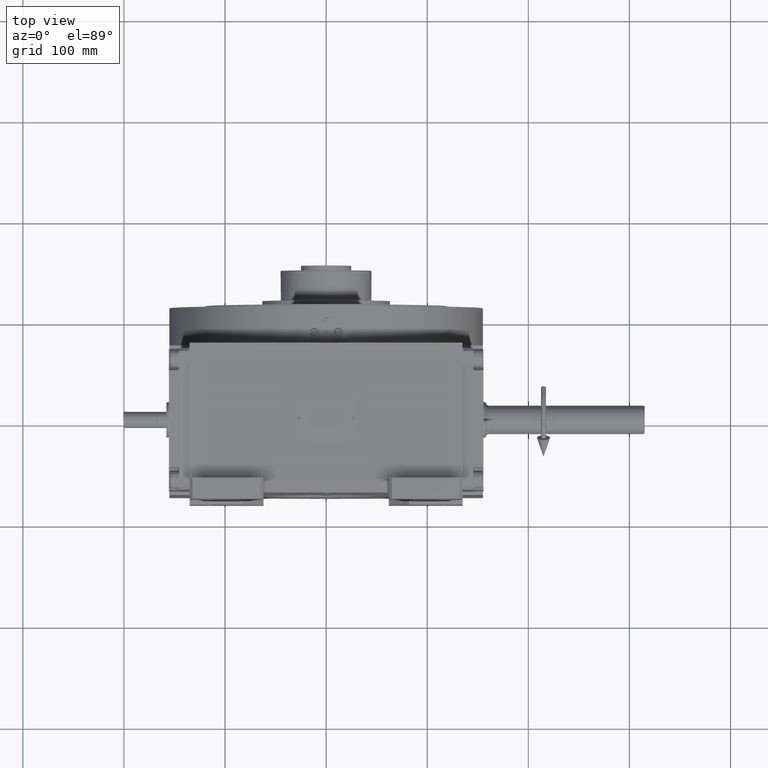
[diagram: clean part render]
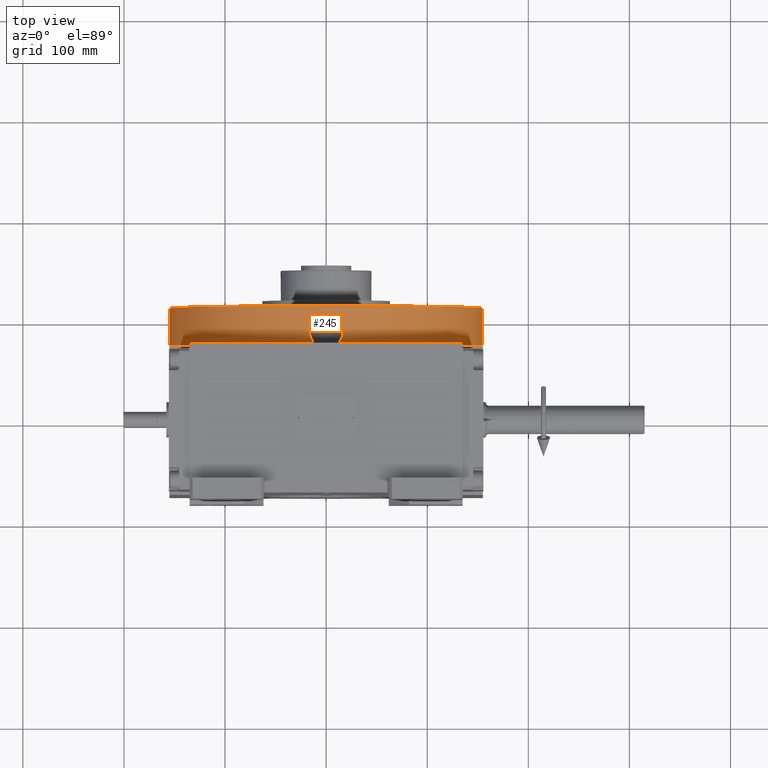
[diagram: same view with one face highlighted and labeled with its STEP entity id]
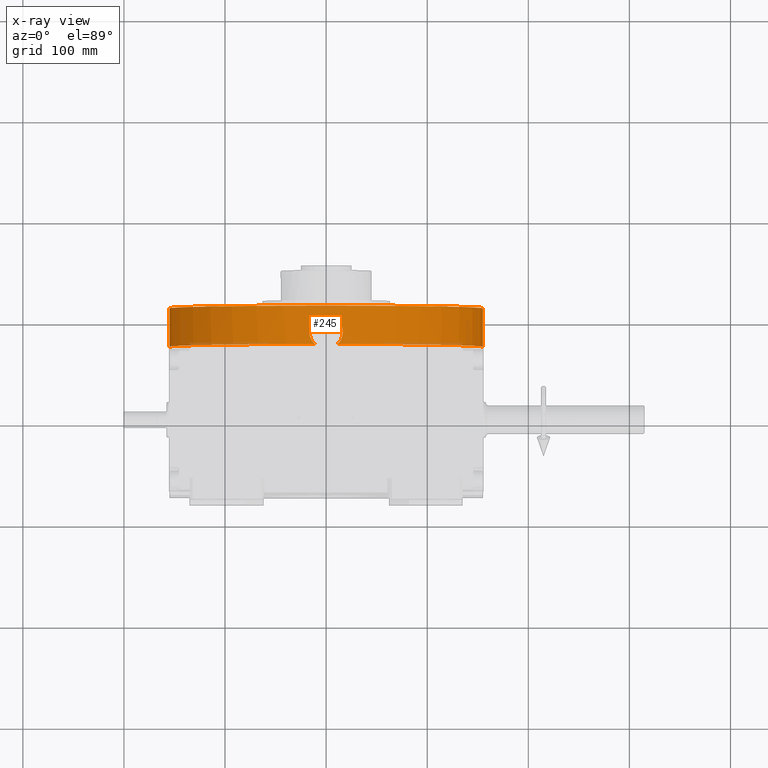
[diagram: x-ray of the same camera — body ghosted, the highlighted face saturated]
A machine part, top view. The second image highlights one B-rep face of the part: STEP entity #245.
The next image is the same camera in x-ray: the body ghosted, the highlighted face saturated — about 3% of this face is hidden behind the body in this view.
In plain terms, the highlighted cylindrical surface (partial cylindrical patch) has radius 155 mm, axis along (0, 1, 0).
Its self-contained STEP definition (entity closure, byte-faithful):
#135 = CARTESIAN_POINT ( 'NONE',  ( 15.45416844923964916, -154.2277916099160393, 17.80606177890279440 ) ) ;
#234 = VECTOR ( 'NONE', #20999, 1000.000000000000000 ) ;
#245 = ADVANCED_FACE ( 'NONE', ( #27432 ), #6730, .T. ) ;
#477 = CARTESIAN_POINT ( 'NONE',  ( 16.07944229175783590, -154.1637528043282259, 15.74008504191706415 ) ) ;
#1172 = EDGE_CURVE ( 'NONE', #21703, #63999, #22430, .T. ) ;
#1196 = CARTESIAN_POINT ( 'NONE',  ( -16.47347441674796542, -154.1221186100601415, 13.07788093233711990 ) ) ;
#1401 = ORIENTED_EDGE ( 'NONE', *, *, #31754, .T. ) ;
#2429 = CARTESIAN_POINT ( 'NONE',  ( 155.0000000000000000, -1.898181641927000027E-14, 0.000000000000000000 ) ) ;
#2974 = ORIENTED_EDGE ( 'NONE', *, *, #64068, .T. ) ;
#4452 = CARTESIAN_POINT ( 'NONE',  ( -12.12083535963226311, -154.5257928050614566, 0.7906035061695759758 ) ) ;
#5147 = CARTESIAN_POINT ( 'NONE',  ( 2.685035500526933738, -154.9776442185808776, 28.28891912727422309 ) ) ;
#5520 = CARTESIAN_POINT ( 'NONE',  ( 12.43262746237155270, -154.5024859019250130, 22.90171598535045305 ) ) ;
#5563 = CARTESIAN_POINT ( 'NONE',  ( -16.49998233661029090, -154.1193022417044460, 12.00000001812405870 ) ) ;
#5687 = CARTESIAN_POINT ( 'NONE',  ( 0.000000000000000000, 0.000000000000000000, 0.000000000000000000 ) ) ;
#5861 = CARTESIAN_POINT ( 'NONE',  ( 15.94805856842614133, -154.1774434893680450, 16.26583947859815638 ) ) ;
#6192 = CARTESIAN_POINT ( 'NONE',  ( -16.07920685589499143, -154.1637774076992855, 15.74105798217210328 ) ) ;
#6553 = CARTESIAN_POINT ( 'NONE',  ( -15.04104416391116672, -154.2686293629195120, 18.80506493828264780 ) ) ;
#6626 = ORIENTED_EDGE ( 'NONE', *, *, #13971, .T. ) ;
#6730 = CYLINDRICAL_SURFACE ( 'NONE', #23623, 155.0000000000000000 ) ;
#7489 = AXIS2_PLACEMENT_3D ( 'NONE', #20976, #37436, #25633 ) ;
#8556 = CARTESIAN_POINT ( 'NONE',  ( -155.0000000000000000, 3.796342387102999398E-14, 0.000000000000000000 ) ) ;
#9093 = CARTESIAN_POINT ( 'NONE',  ( -15.93480398042398605, -154.1789013208416463, 7.575224915596185937 ) ) ;
#10412 = CARTESIAN_POINT ( 'NONE',  ( 12.12089972014433314, -154.5257876431932402, 0.7906554065422800592 ) ) ;
#10841 = CARTESIAN_POINT ( 'NONE',  ( -6.804449563144633117, -154.8513750105633449, 27.04126009729906599 ) ) ;
#11104 = CARTESIAN_POINT ( 'NONE',  ( 16.49992246166192089, -154.1192802953580951, 11.44157901925919241 ) ) ;
#11539 = CARTESIAN_POINT ( 'NONE',  ( 5.309465047980734376, -154.9122498780884882, 27.65956347238378399 ) ) ;
#11708 = CARTESIAN_POINT ( 'NONE',  ( 0.000000000000000000, 0.000000000000000000, 38.00000000000000711 ) ) ;
#13971 = EDGE_CURVE ( 'NONE', #48265, #38597, #48942, .T. ) ;
#14054 = CARTESIAN_POINT ( 'NONE',  ( 12.85405420613797212, -154.4665288897264759, 1.639735500227976761 ) ) ;
#15477 = CARTESIAN_POINT ( 'NONE',  ( -14.16349452285378874, -154.3528783872963288, 3.461613631622395104 ) ) ;
#15842 = CARTESIAN_POINT ( 'NONE',  ( -15.63543345909815585, -154.2094610502056753, 17.29859132476287442 ) ) ;
#16181 = CARTESIAN_POINT ( 'NONE',  ( 0.5395909367066812345, -154.9999991344193120, 28.49999439215257269 ) ) ;
#16526 = CARTESIAN_POINT ( 'NONE',  ( -14.30134451282896002, -154.3390324787075656, 20.24669562453046012 ) ) ;
#16887 = CARTESIAN_POINT ( 'NONE',  ( 16.49995917721336269, -154.1193573637430347, 12.00000000688956270 ) ) ;
#17392 = DIRECTION ( 'NONE',  ( 0.000000000000000000, 0.000000000000000000, 1.000000000000000000 ) ) ;
#19419 = CARTESIAN_POINT ( 'NONE',  ( -14.71186955414902009, -154.3008712253308943, 4.446158355349954405 ) ) ;
#19749 = CARTESIAN_POINT ( 'NONE',  ( 11.32475165290999897, -154.5857367287999864, 0.000000000000000000 ) ) ;
#20495 = CARTESIAN_POINT ( 'NONE',  ( -16.35841010258596029, -154.1343753264042959, 9.771570267182383418 ) ) ;
#20976 = CARTESIAN_POINT ( 'NONE',  ( 0.000000000000000000, 0.000000000000000000, 0.000000000000000000 ) ) ;
#20999 = DIRECTION ( 'NONE',  ( 0.000000000000000000, 0.000000000000000000, 1.000000000000000000 ) ) ;
#21548 = CARTESIAN_POINT ( 'NONE',  ( 6.804908101104747864, -154.8513549216870047, 27.04104868677902473 ) ) ;
#21703 = VERTEX_POINT ( 'NONE', #5563 ) ;
#21808 = CARTESIAN_POINT ( 'NONE',  ( 11.73333306880150495, -154.5558045813984336, 0.3855902554139045701 ) ) ;
#21883 = CARTESIAN_POINT ( 'NONE',  ( -16.28931234655462035, -154.1417187558310218, 14.68326146040402413 ) ) ;
#22223 = CARTESIAN_POINT ( 'NONE',  ( 16.39439426799619071, -154.1306861371135994, 14.15393482542948966 ) ) ;
#22430 = B_SPLINE_CURVE_WITH_KNOTS ( 'NONE', 3,
 ( #22939, #54731, #1196, #48647, #21883, #6192, #44692, #15842, #32265, #6553, #55406, #16526, #65413, #59707, #38676, #37626, #39002, #49348, #44357, #54015, #10841, #54382, #60740, #70425, #26906, #37961, #59365, #16181, #38319, #33647, #5147, #28321, #11539, #21548, #27603, #43305, #65083, #60063, #32614, #5520, #27274, #43992, #49018, #65778, #32978, #135, #43648, #5861, #477, #22223, #66133, #16887 ),
 .UNSPECIFIED., .F., .F.,
 ( 4, 2, 2, 2, 2, 2, 2, 2, 2, 2, 2, 2, 2, 2, 2, 2, 2, 2, 2, 2, 2, 2, 2, 2, 2, 4 ),
 ( 0.1706820411944501292, 0.1912591610584686019, 0.2118362809224871024, 0.2324134007865055751, 0.2529905206505240756, 0.2735676405145425205, 0.2941447603785610210, 0.3352990001065978554, 0.3764532398346347453, 0.3970303596986531347, 0.4176074795626716352, 0.4587617192907084696, 0.4793388391547269145, 0.4999159590187454150, 0.5204930788827639709, 0.5410701987467823049, 0.5822244384748193058, 0.6028015583388377507, 0.6233786782028563067, 0.6645329179308931966, 0.7056871576589300865, 0.7262642775229486425, 0.7468413973869671985, 0.7674185172509855324, 0.7879956371150040884, 0.8291498768430409783 ),
 .UNSPECIFIED. ) ;
#22939 = CARTESIAN_POINT ( 'NONE',  ( -16.49998233661029090, -154.1193022417044460, 12.00000001812405870 ) ) ;
#23623 = AXIS2_PLACEMENT_3D ( 'NONE', #5687, #17392, #55219 ) ;
#25633 = DIRECTION ( 'NONE',  ( 0.07306291388971911105, -0.9973273337344883416, 0.000000000000000000 ) ) ;
#26201 = CARTESIAN_POINT ( 'NONE',  ( -13.20012473331006575, -154.4372384430344027, 2.084379910846553496 ) ) ;
#26906 = CARTESIAN_POINT ( 'NONE',  ( -2.148963280061153114, -154.9860295734070803, 28.36822270384071132 ) ) ;
#27261 = ORIENTED_EDGE ( 'NONE', *, *, #59862, .F. ) ;
#27274 = CARTESIAN_POINT ( 'NONE',  ( 13.12279720633661562, -154.4446667571554883, 22.06048731613105929 ) ) ;
#27432 = FACE_OUTER_BOUND ( 'NONE', #64682, .T. ) ;
#27521 = CARTESIAN_POINT ( 'NONE',  ( 14.16350684025821316, -154.3528773885687428, 3.461629325670642743 ) ) ;
#27575 = DIRECTION ( 'NONE',  ( -1.000000000000000000, 0.000000000000000000, 0.000000000000000000 ) ) ;
#27603 = CARTESIAN_POINT ( 'NONE',  ( 7.294570994031262856, -154.8289918631883495, 26.80984615217579758 ) ) ;
#27929 = CARTESIAN_POINT ( 'NONE',  ( 0.000000000000000000, 0.000000000000000000, 0.000000000000000000 ) ) ;
#28321 = CARTESIAN_POINT ( 'NONE',  ( 4.271076726543375557, -154.9447527227574994, 27.97415292169609913 ) ) ;
#29564 = DIRECTION ( 'NONE',  ( 0.000000000000000000, 0.000000000000000000, 1.000000000000000000 ) ) ;
#29601 = VERTEX_POINT ( 'NONE', #69738 ) ;
#31744 = LINE ( 'NONE', #65246, #234 ) ;
#31754 = EDGE_CURVE ( 'NONE', #45179, #48921, #38279, .T. ) ;
#31925 = CARTESIAN_POINT ( 'NONE',  ( -16.27364987442522093, -154.1433787658870358, 9.219688347690263797 ) ) ;
#32265 = CARTESIAN_POINT ( 'NONE',  ( -15.45383373645091218, -154.2278251091570098, 17.80693722841294502 ) ) ;
#32524 = CARTESIAN_POINT ( 'NONE',  ( 16.49995917721336269, -154.1193573637430347, 12.00000000688956270 ) ) ;
#32614 = CARTESIAN_POINT ( 'NONE',  ( 10.90286735625305070, -154.6179674517312037, 24.43166022878835619 ) ) ;
#32978 = CARTESIAN_POINT ( 'NONE',  ( 15.04132006578126557, -154.2686025022846081, 18.80444574887851772 ) ) ;
#33647 = CARTESIAN_POINT ( 'NONE',  ( 2.149406513584848355, -154.9860234714047351, 28.36816253932572707 ) ) ;
#34898 = LINE ( 'NONE', #2429, #44699 ) ;
#35448 = CARTESIAN_POINT ( 'NONE',  ( -11.32475165290999897, -154.5857367287999864, 0.000000000000000000 ) ) ;
#35940 = CARTESIAN_POINT ( 'NONE',  ( 155.0000000000000000, -1.898139848424999979E-14, 0.000000000000000000 ) ) ;
#36564 = CARTESIAN_POINT ( 'NONE',  ( -11.73327428822755891, -154.5558088875874603, 0.3855347824635598220 ) ) ;
#36614 = ORIENTED_EDGE ( 'NONE', *, *, #1172, .T. ) ;
#37176 = CARTESIAN_POINT ( 'NONE',  ( 15.93462759401248796, -154.1789196505203847, 7.574197844632982068 ) ) ;
#37436 = DIRECTION ( 'NONE',  ( 0.000000000000000000, 0.000000000000000000, 1.000000000000000000 ) ) ;
#37590 = EDGE_CURVE ( 'NONE', #48921, #49755, #34898, .T. ) ;
#37626 = CARTESIAN_POINT ( 'NONE',  ( -10.90238920086943253, -154.6180015530145511, 24.43207579448705147 ) ) ;
#37850 = ORIENTED_EDGE ( 'NONE', *, *, #40411, .T. ) ;
#37961 = CARTESIAN_POINT ( 'NONE',  ( -1.076815924736641117, -154.9971866634110427, 28.47365119519368193 ) ) ;
#38279 = CIRCLE ( 'NONE', #7489, 154.9999999999999716 ) ;
#38319 = CARTESIAN_POINT ( 'NONE',  ( 1.077233577524535413, -154.9971838055740818, 28.47362586541065355 ) ) ;
#38597 = VERTEX_POINT ( 'NONE', #35448 ) ;
#38676 = CARTESIAN_POINT ( 'NONE',  ( -12.43230435225374642, -154.5025122871086865, 22.90209557148281405 ) ) ;
#39002 = CARTESIAN_POINT ( 'NONE',  ( -10.06250006711099587, -154.6756653913563753, 25.12111237511009421 ) ) ;
#39314 = DIRECTION ( 'NONE',  ( 0.000000000000000000, 0.000000000000000000, 1.000000000000000000 ) ) ;
#40411 = EDGE_CURVE ( 'NONE', #63999, #45179, #62386, .T. ) ;
#42507 = CARTESIAN_POINT ( 'NONE',  ( 16.35834379686392026, -154.1343823576824548, 9.770764172154200011 ) ) ;
#43305 = CARTESIAN_POINT ( 'NONE',  ( 8.247284097151625915, -154.7811674344753783, 26.30121859278279928 ) ) ;
#43580 = ORIENTED_EDGE ( 'NONE', *, *, #67100, .F. ) ;
#43648 = CARTESIAN_POINT ( 'NONE',  ( 15.63566703618283604, -154.2094373550232547, 17.29791062638470578 ) ) ;
#43992 = CARTESIAN_POINT ( 'NONE',  ( 14.02286187878669566, -154.3646658688130913, 20.71205754263190357 ) ) ;
#44357 = CARTESIAN_POINT ( 'NONE',  ( -8.246858410088949043, -154.7811901890003412, 26.30146125159406623 ) ) ;
#44619 = AXIS2_PLACEMENT_3D ( 'NONE', #11708, #51225, #62243 ) ;
#44692 = CARTESIAN_POINT ( 'NONE',  ( -15.94784929967946852, -154.1774651483267178, 16.26664953830242766 ) ) ;
#44699 = VECTOR ( 'NONE', #29564, 1000.000000000000000 ) ;
#45179 = VERTEX_POINT ( 'NONE', #57564 ) ;
#47589 = CARTESIAN_POINT ( 'NONE',  ( 16.49995917721336269, -154.1193573637430347, 12.00000000688956270 ) ) ;
#48265 = VERTEX_POINT ( 'NONE', #8556 ) ;
#48556 = CARTESIAN_POINT ( 'NONE',  ( 14.71187411252618205, -154.3008706713859226, 4.446318010863510750 ) ) ;
#48647 = CARTESIAN_POINT ( 'NONE',  ( -16.36816079430261084, -154.1333387571441449, 14.15062605043702959 ) ) ;
#48921 = VERTEX_POINT ( 'NONE', #35940 ) ;
#48931 = CARTESIAN_POINT ( 'NONE',  ( 13.20008998802703104, -154.4372414456569516, 2.084309618181268142 ) ) ;
#48942 = CIRCLE ( 'NONE', #60332, 155.0000000000000000 ) ;
#49018 = CARTESIAN_POINT ( 'NONE',  ( 14.30170672093714401, -154.3389988482240085, 20.24608490011583228 ) ) ;
#49348 = CARTESIAN_POINT ( 'NONE',  ( -8.710398745920951313, -154.7557197542369920, 26.02385081294200830 ) ) ;
#49755 = VERTEX_POINT ( 'NONE', #63508 ) ;
#51225 = DIRECTION ( 'NONE',  ( 0.000000000000000000, 0.000000000000000000, 1.000000000000000000 ) ) ;
#53321 = CARTESIAN_POINT ( 'NONE',  ( -11.32475165290999897, -154.5857367287999864, 0.000000000000000000 ) ) ;
#53594 = CARTESIAN_POINT ( 'NONE',  ( 16.47148550261519162, -154.1223325864807236, 10.88164834785590074 ) ) ;
#54015 = CARTESIAN_POINT ( 'NONE',  ( -7.294097842296380030, -154.8290142273939409, 26.81007738098103133 ) ) ;
#54103 = B_SPLINE_CURVE_WITH_KNOTS ( 'NONE', 3,
 ( #53321, #36564, #4452, #68325, #26201, #15477, #19419, #69370, #9093, #31925, #20495, #59005, #69715, #62944 ),
 .UNSPECIFIED., .F., .F.,
 ( 4, 2, 2, 2, 2, 2, 4 ),
 ( 0.000000000000000000, 0.02133525514930627656, 0.04267051029861255312, 0.08534102059722507849, 0.1280115308958376108, 0.1493467860451438700, 0.1706820411944501292 ),
 .UNSPECIFIED. ) ;
#54289 = CARTESIAN_POINT ( 'NONE',  ( 15.59739717417918392, -154.2138746392213875, 6.502572579891363169 ) ) ;
#54382 = CARTESIAN_POINT ( 'NONE',  ( -5.309062898309572454, -154.9122634177804514, 27.65969469683301085 ) ) ;
#54731 = CARTESIAN_POINT ( 'NONE',  ( -16.49994596999610508, -154.1192777785686019, 12.53823013427945376 ) ) ;
#55219 = DIRECTION ( 'NONE',  ( 1.000000000000000000, 0.000000000000000000, 0.000000000000000000 ) ) ;
#55406 = CARTESIAN_POINT ( 'NONE',  ( -14.81055788990334321, -154.2910003089227757, 19.29301661750615082 ) ) ;
#57140 = CIRCLE ( 'NONE', #44619, 155.0000000000000000 ) ;
#57564 = CARTESIAN_POINT ( 'NONE',  ( 11.32475165290999897, -154.5857367287999864, 0.000000000000000000 ) ) ;
#58532 = ORIENTED_EDGE ( 'NONE', *, *, #37590, .T. ) ;
#59005 = CARTESIAN_POINT ( 'NONE',  ( -16.47158299025702632, -154.1223221734617255, 10.88278899042149028 ) ) ;
#59365 = CARTESIAN_POINT ( 'NONE',  ( -0.5390935379411242456, -155.0000008651816756, 28.50000553285605420 ) ) ;
#59707 = CARTESIAN_POINT ( 'NONE',  ( -13.12243075888235921, -154.4446979382173026, 22.06095570414272444 ) ) ;
#59862 = EDGE_CURVE ( 'NONE', #29601, #49755, #57140, .T. ) ;
#60063 = CARTESIAN_POINT ( 'NONE',  ( 10.06302999523547292, -154.6756313046001026, 25.12071950621989913 ) ) ;
#60332 = AXIS2_PLACEMENT_3D ( 'NONE', #27929, #39314, #27575 ) ;
#60740 = CARTESIAN_POINT ( 'NONE',  ( -4.270670968859515249, -154.9447640967602808, 27.97426397904146356 ) ) ;
#62243 = DIRECTION ( 'NONE',  ( -1.000000000000000000, 0.000000000000000000, 0.000000000000000000 ) ) ;
#62386 = B_SPLINE_CURVE_WITH_KNOTS ( 'NONE', 3,
 ( #32524, #11104, #53594, #42507, #64634, #37176, #54289, #48556, #27521, #48931, #14054, #10412, #21808, #19749 ),
 .UNSPECIFIED., .F., .F.,
 ( 4, 2, 2, 2, 2, 2, 4 ),
 ( 0.8291498768430409783, 0.8505061422376608560, 0.8718624076322808447, 0.9145749384215206002, 0.9572874692107602446, 0.9786437346053801223, 1.000000000000000000 ),
 .UNSPECIFIED. ) ;
#62944 = CARTESIAN_POINT ( 'NONE',  ( -16.49998233661029090, -154.1193022417044460, 12.00000001812405870 ) ) ;
#63508 = CARTESIAN_POINT ( 'NONE',  ( 155.0000000000000000, -1.898139848424999979E-14, 38.00000000000000711 ) ) ;
#63999 = VERTEX_POINT ( 'NONE', #47589 ) ;
#64068 = EDGE_CURVE ( 'NONE', #38597, #21703, #54103, .T. ) ;
#64634 = CARTESIAN_POINT ( 'NONE',  ( 16.27357453087221373, -154.1433867451942206, 9.218922373429377259 ) ) ;
#64682 = EDGE_LOOP ( 'NONE', ( #1401, #58532, #27261, #43580, #6626, #2974, #36614, #37850 ) ) ;
#65083 = CARTESIAN_POINT ( 'NONE',  ( 8.710829171276920135, -154.7556956243912794, 26.02358424626103428 ) ) ;
#65246 = CARTESIAN_POINT ( 'NONE',  ( -155.0000000000000000, 1.898181641927000027E-14, 0.000000000000000000 ) ) ;
#65413 = CARTESIAN_POINT ( 'NONE',  ( -14.02251297831739585, -154.3646975747211343, 20.71261755575151042 ) ) ;
#65778 = CARTESIAN_POINT ( 'NONE',  ( 14.81083927273900969, -154.2909732312324707, 19.29245037312113809 ) ) ;
#66133 = CARTESIAN_POINT ( 'NONE',  ( 16.49991043964675086, -154.1192815824279307, 13.07609595853627482 ) ) ;
#67100 = EDGE_CURVE ( 'NONE', #48265, #29601, #31744, .T. ) ;
#68325 = CARTESIAN_POINT ( 'NONE',  ( -12.85408490202133613, -154.4665264488709226, 1.639808836066521280 ) ) ;
#69370 = CARTESIAN_POINT ( 'NONE',  ( -15.59747496492213337, -154.2138668907341525, 6.502732287592812632 ) ) ;
#69715 = CARTESIAN_POINT ( 'NONE',  ( -16.49998406553928021, -154.1192737000707496, 11.44193956501975151 ) ) ;
#69738 = CARTESIAN_POINT ( 'NONE',  ( -155.0000000000000000, 3.796342387102999398E-14, 38.00000000000000711 ) ) ;
#70425 = CARTESIAN_POINT ( 'NONE',  ( -2.684587958510955996, -154.9776520191678060, 28.28899123199289889 ) ) ;